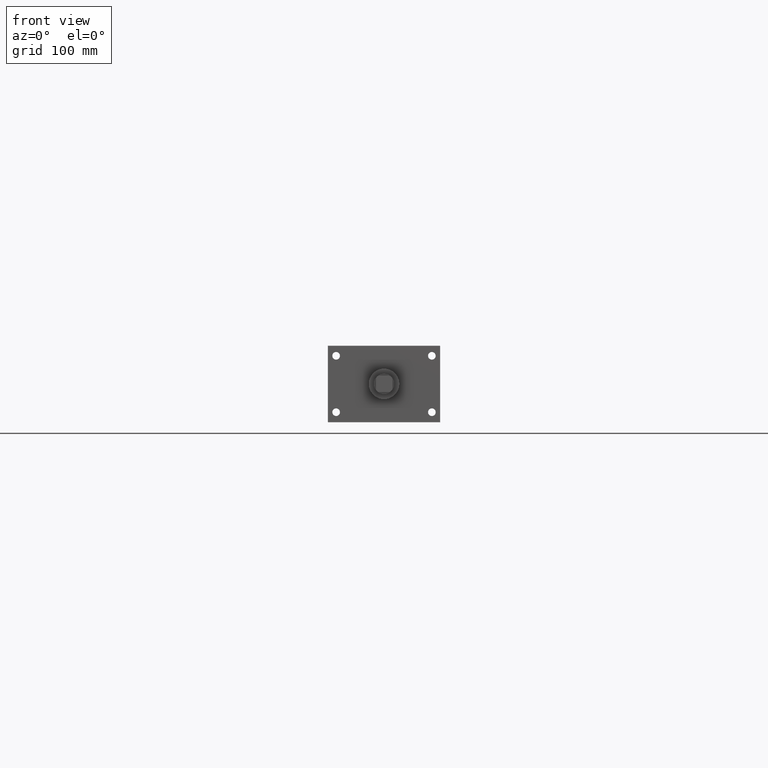
[diagram: clean part render]
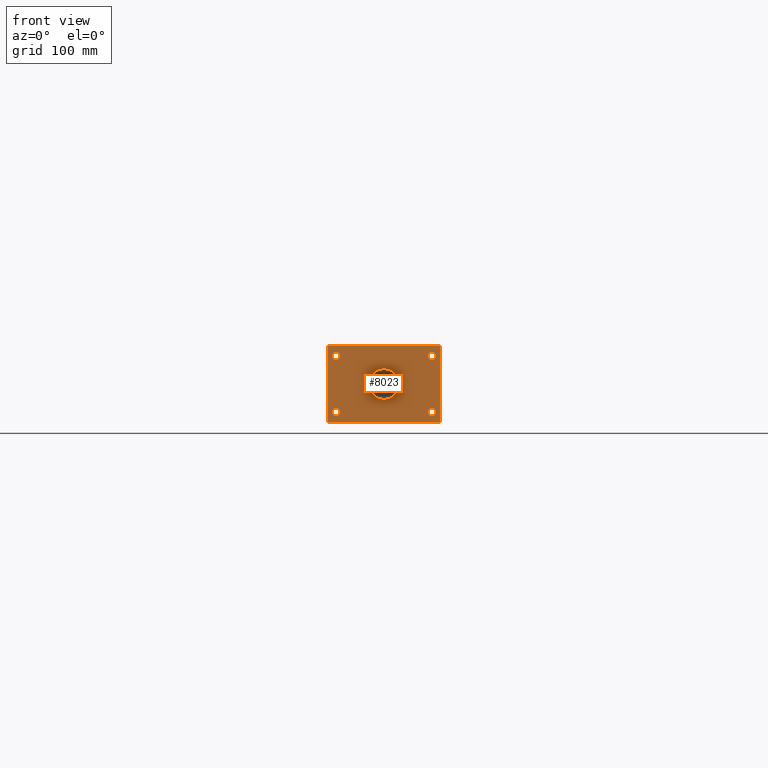
[diagram: same view with one face highlighted and labeled with its STEP entity id]
A machine part, front view. The second image highlights one B-rep face of the part: STEP entity #8023.
In plain terms, the highlighted planar face has unit normal (0, -1, 0).
Its self-contained STEP definition (entity closure, byte-faithful):
#424=EDGE_CURVE('',#430,#430,#425,.T.);
#425=CIRCLE('',#426,1.905000000E+001);
#426=AXIS2_PLACEMENT_3D('',#427,#428,#429);
#427=CARTESIAN_POINT('',(0.000000000E+000,1.905000000E+001,0.000000000E+000));
#428=DIRECTION('',(0.0E+000,1.0E+000,0.0E+000));
#429=DIRECTION('',(1.0E+000,0.0E+000,0.0E+000));
#430=VERTEX_POINT('',#431);
#431=CARTESIAN_POINT('',(1.905000000E+001,1.905000000E+001,0.000000000E+000));
#533=VERTEX_POINT('',#534);
#534=CARTESIAN_POINT('',(6.985000000E+001,1.905000000E+001,-4.762500000E+001));
#535=EDGE_CURVE('',#540,#533,#536,.T.);
#536=LINE('',#537,#538);
#537=CARTESIAN_POINT('',(-6.985000000E+001,1.905000000E+001,-4.762500000E+001));
#538=VECTOR('',#539,1.0E+000);
#539=DIRECTION('',(1.0E+000,0.0E+000,0.0E+000));
#540=VERTEX_POINT('',#541);
#541=CARTESIAN_POINT('',(-6.985000000E+001,1.905000000E+001,-4.762500000E+001));
#596=VERTEX_POINT('',#597);
#597=CARTESIAN_POINT('',(6.985000000E+001,1.905000000E+001,4.762500000E+001));
#598=EDGE_CURVE('',#533,#596,#599,.T.);
#599=LINE('',#600,#601);
#600=CARTESIAN_POINT('',(6.985000000E+001,1.905000000E+001,-4.762500000E+001));
#601=VECTOR('',#602,1.0E+000);
#602=DIRECTION('',(0.0E+000,0.0E+000,1.0E+000));
#626=VERTEX_POINT('',#628);
#628=CARTESIAN_POINT('',(-6.985000000E+001,1.905000000E+001,4.762500000E+001));
#629=EDGE_CURVE('',#596,#626,#630,.T.);
#630=LINE('',#631,#632);
#631=CARTESIAN_POINT('',(6.985000000E+001,1.905000000E+001,4.762500000E+001));
#632=VECTOR('',#633,1.0E+000);
#633=DIRECTION('',(-1.0E+000,0.0E+000,0.0E+000));
#681=EDGE_CURVE('',#626,#540,#682,.T.);
#682=LINE('',#683,#684);
#683=CARTESIAN_POINT('',(-6.985000000E+001,1.905000000E+001,4.762500000E+001));
#684=VECTOR('',#685,1.0E+000);
#685=DIRECTION('',(0.0E+000,0.0E+000,-1.0E+000));
#724=FACE_OUTER_BOUND('',#730,.T.);
#725=FACE_BOUND('',#731,.T.);
#726=FACE_BOUND('',#732,.T.);
#727=FACE_BOUND('',#733,.T.);
#728=FACE_BOUND('',#734,.T.);
#729=FACE_BOUND('',#735,.T.);
#730=EDGE_LOOP('',(#736));
#731=EDGE_LOOP('',(#737));
#732=EDGE_LOOP('',(#746));
#733=EDGE_LOOP('',(#755));
#734=EDGE_LOOP('',(#764));
#735=EDGE_LOOP('',(#773,#774,#775,#776));
#736=ORIENTED_EDGE('',*,*,#424,.T.);
#737=ORIENTED_EDGE('',*,*,#738,.T.);
#738=EDGE_CURVE('',#744,#744,#739,.T.);
#739=CIRCLE('',#740,4.762500000E+000);
#740=AXIS2_PLACEMENT_3D('',#741,#742,#743);
#741=CARTESIAN_POINT('',(-5.953125000E+001,1.905000000E+001,3.505200000E+001));
#742=DIRECTION('',(0.0E+000,1.0E+000,0.0E+000));
#743=DIRECTION('',(0.0E+000,0.0E+000,1.0E+000));
#744=VERTEX_POINT('',#745);
#745=CARTESIAN_POINT('',(-5.953125000E+001,1.905000000E+001,3.981450000E+001));
#746=ORIENTED_EDGE('',*,*,#747,.T.);
#747=EDGE_CURVE('',#753,#753,#748,.T.);
#748=CIRCLE('',#749,4.762500000E+000);
#749=AXIS2_PLACEMENT_3D('',#750,#751,#752);
#750=CARTESIAN_POINT('',(5.953125000E+001,1.905000000E+001,3.505200000E+001));
#751=DIRECTION('',(0.0E+000,1.0E+000,0.0E+000));
#752=DIRECTION('',(0.0E+000,0.0E+000,1.0E+000));
#753=VERTEX_POINT('',#754);
#754=CARTESIAN_POINT('',(5.953125000E+001,1.905000000E+001,3.981450000E+001));
#755=ORIENTED_EDGE('',*,*,#756,.T.);
#756=EDGE_CURVE('',#762,#762,#757,.T.);
#757=CIRCLE('',#758,4.762500000E+000);
#758=AXIS2_PLACEMENT_3D('',#759,#760,#761);
#759=CARTESIAN_POINT('',(5.953125000E+001,1.905000000E+001,-3.505200000E+001));
#760=DIRECTION('',(0.0E+000,1.0E+000,0.0E+000));
#761=DIRECTION('',(0.0E+000,0.0E+000,1.0E+000));
#762=VERTEX_POINT('',#763);
#763=CARTESIAN_POINT('',(5.953125000E+001,1.905000000E+001,-3.028950000E+001));
#764=ORIENTED_EDGE('',*,*,#765,.T.);
#765=EDGE_CURVE('',#771,#771,#766,.T.);
#766=CIRCLE('',#767,4.762500000E+000);
#767=AXIS2_PLACEMENT_3D('',#768,#769,#770);
#768=CARTESIAN_POINT('',(-5.953125000E+001,1.905000000E+001,-3.505200000E+001));
#769=DIRECTION('',(0.0E+000,1.0E+000,0.0E+000));
#770=DIRECTION('',(0.0E+000,0.0E+000,1.0E+000));
#771=VERTEX_POINT('',#772);
#772=CARTESIAN_POINT('',(-5.953125000E+001,1.905000000E+001,-3.028950000E+001));
#773=ORIENTED_EDGE('',*,*,#535,.T.);
#774=ORIENTED_EDGE('',*,*,#598,.T.);
#775=ORIENTED_EDGE('',*,*,#629,.T.);
#776=ORIENTED_EDGE('',*,*,#681,.T.);
#777=PLANE('',#778);
#778=AXIS2_PLACEMENT_3D('',#779,#780,#781);
#779=CARTESIAN_POINT('',(6.985000000E+001,1.905000000E+001,-4.762500000E+001));
#780=DIRECTION('',(0.0E+000,-1.0E+000,0.0E+000));
#781=DIRECTION('',(0.0E+000,0.0E+000,-1.0E+000));
#8023=ADVANCED_FACE('',(#724,#725,#726,#727,#728,#729),#777,.T.);